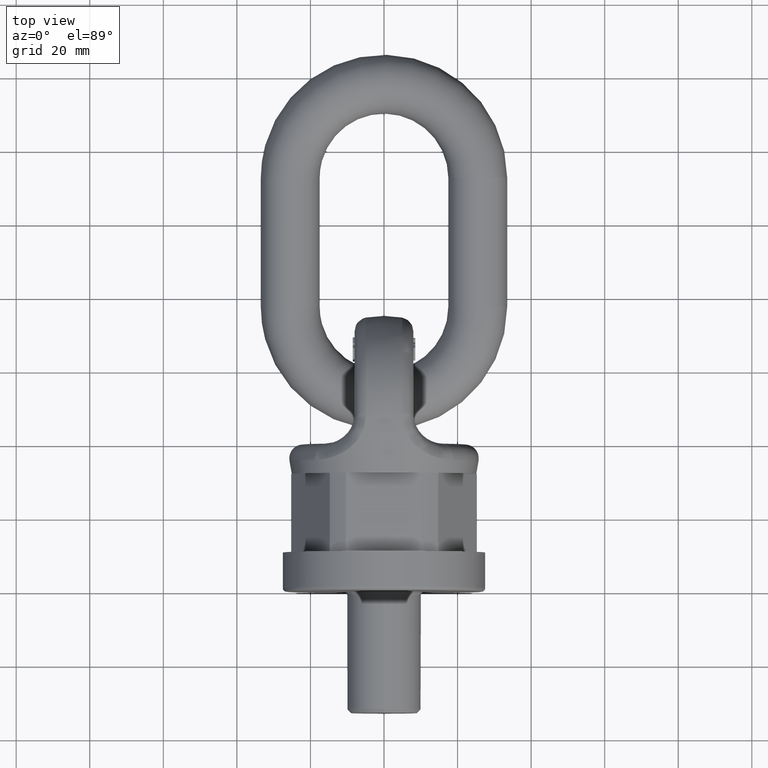
[diagram: clean part render]
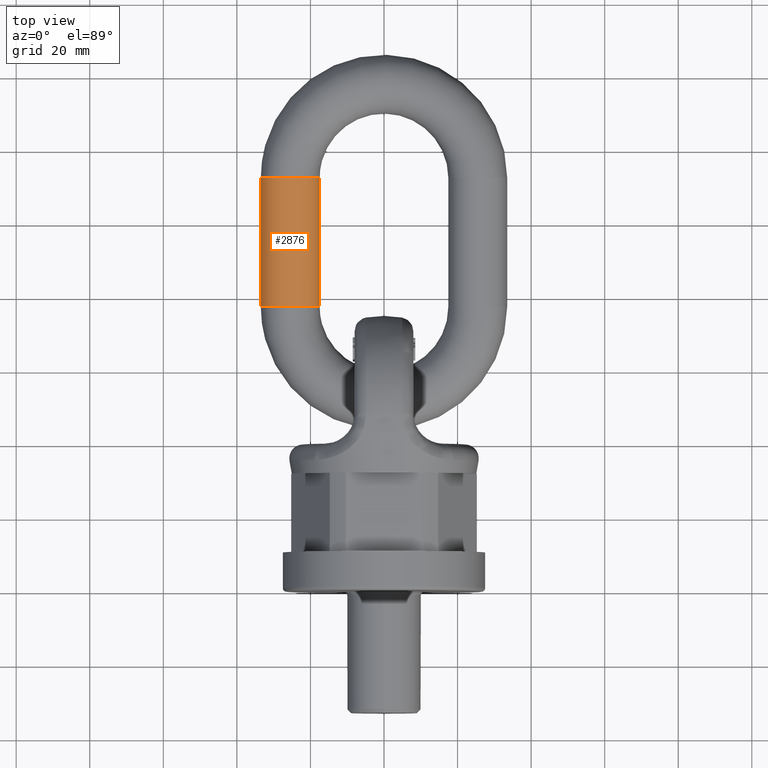
[diagram: same view with one face highlighted and labeled with its STEP entity id]
A machine part, top view. The second image highlights one B-rep face of the part: STEP entity #2876.
In plain terms, the highlighted cylindrical surface (bore or boss wall) has radius 8 mm, axis along (0, 1, 0).
Its self-contained STEP definition (entity closure, byte-faithful):
#2031=CYLINDRICAL_SURFACE('',#5795,8.);
#2876=ADVANCED_FACE('',(#3049,#3050),#2031,.T.);
#3049=FACE_BOUND('',#3335,.T.);
#3050=FACE_BOUND('',#3336,.T.);
#3335=EDGE_LOOP('',(#4527));
#3336=EDGE_LOOP('',(#4528));
#4527=ORIENTED_EDGE('',*,*,#5525,.T.);
#4528=ORIENTED_EDGE('',*,*,#5526,.F.);
#4929=VERTEX_POINT('',#9678);
#4930=VERTEX_POINT('',#9680);
#5525=EDGE_CURVE('',#4929,#4929,#5591,.T.);
#5526=EDGE_CURVE('',#4930,#4930,#5592,.T.);
#5591=CIRCLE('',#5793,8.);
#5592=CIRCLE('',#5794,8.);
#5793=AXIS2_PLACEMENT_3D('',#9677,#6545,#6546);
#5794=AXIS2_PLACEMENT_3D('',#9679,#6547,#6548);
#5795=AXIS2_PLACEMENT_3D('',#9681,#6549,#6550);
#6545=DIRECTION('',(-1.21365530983203E-15,1.,0.));
#6546=DIRECTION('',(-1.,-1.73472347597681E-15,0.));
#6547=DIRECTION('',(-1.21365530983203E-15,1.,0.));
#6548=DIRECTION('',(-1.,-1.73472347597681E-15,0.));
#6549=DIRECTION('',(0.,1.,0.));
#6550=DIRECTION('',(0.,0.,1.));
#9677=CARTESIAN_POINT('',(-25.5,77.5,0.));
#9678=CARTESIAN_POINT('',(-33.5,77.5,0.));
#9679=CARTESIAN_POINT('',(-25.5,112.5,0.));
#9680=CARTESIAN_POINT('',(-33.5,112.5,0.));
#9681=CARTESIAN_POINT('',(-25.5,77.5,0.));